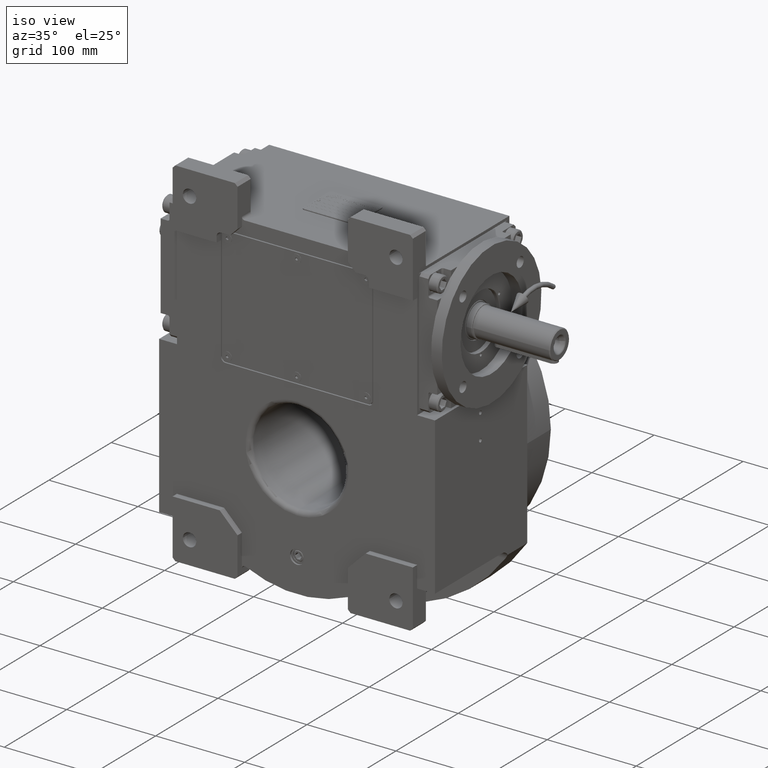
[diagram: clean part render]
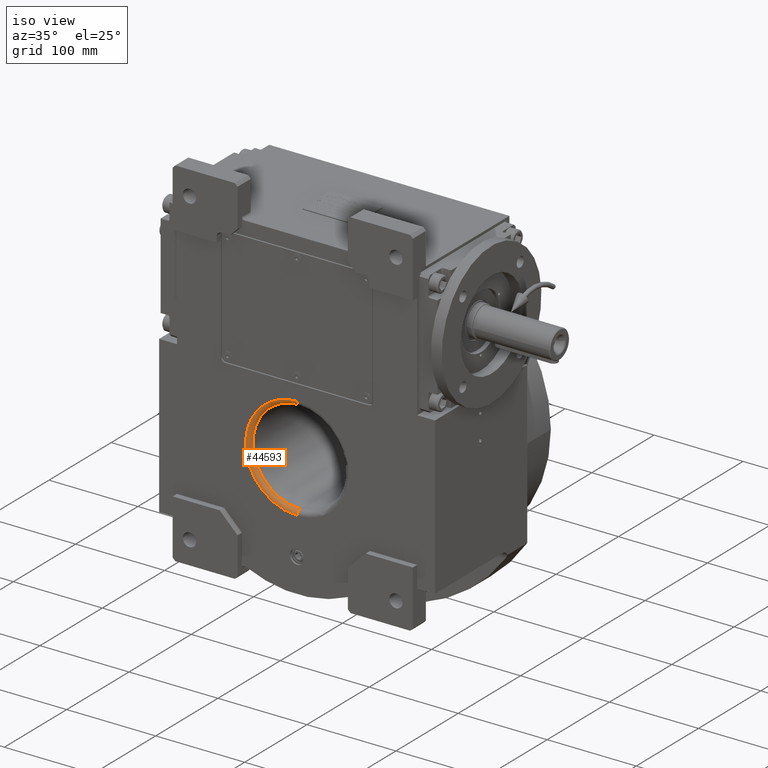
[diagram: same view with one face highlighted and labeled with its STEP entity id]
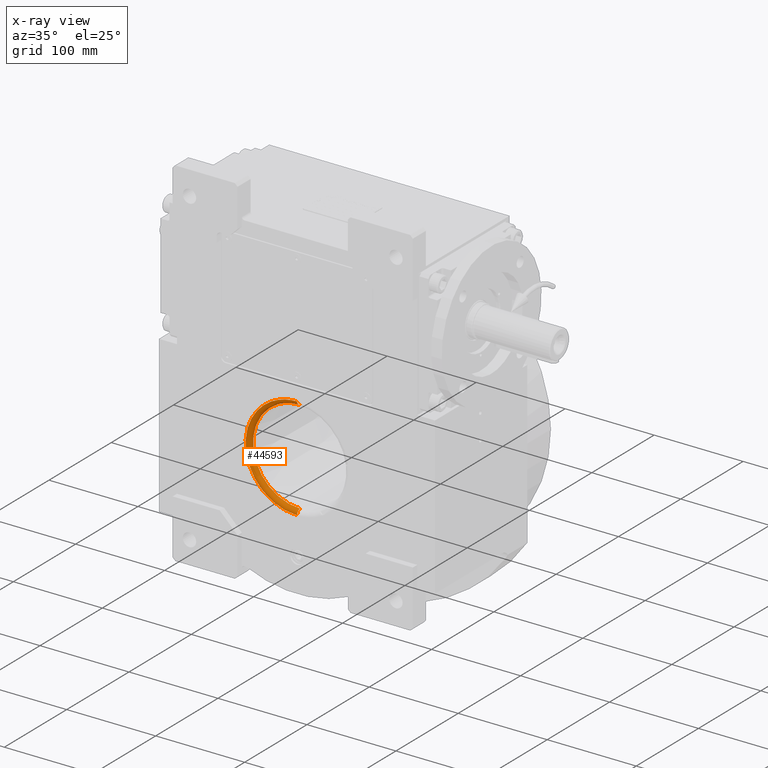
[diagram: x-ray of the same camera — body ghosted, the highlighted face saturated]
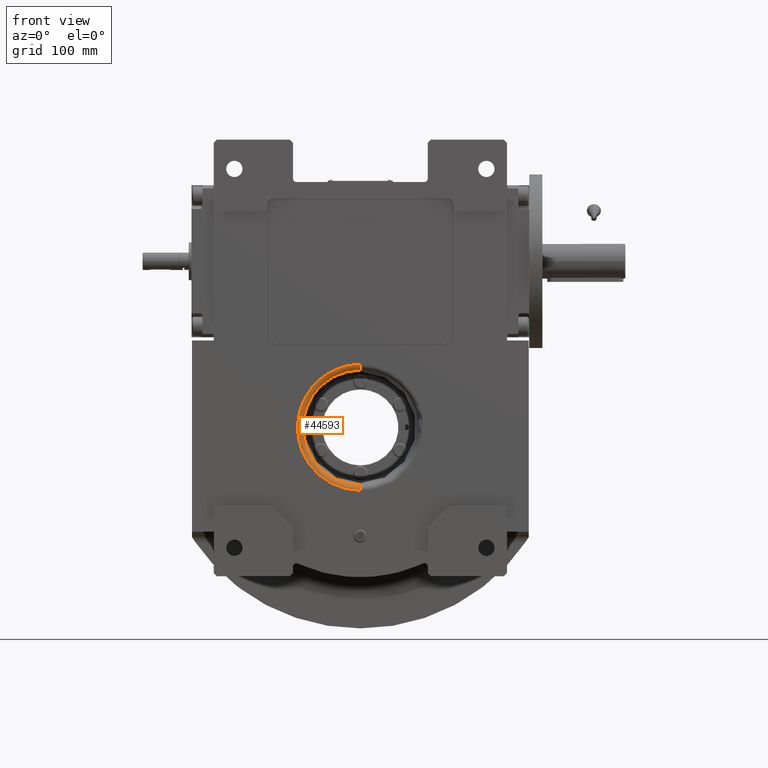
[diagram: same view with one face highlighted and labeled with its STEP entity id]
A machine part, iso view. The second image highlights one B-rep face of the part: STEP entity #44593.
The next image is the same camera in x-ray: the body ghosted, the highlighted face saturated — about 0% of this face is hidden behind the body in this view.
A second angle (front view) of the same face is appended — the face is thin or edge-on in the first view.
In plain terms, the highlighted toroidal blend (fillet) surface has major radius 57.8885 mm and minor (blend) radius 5 mm.
Its self-contained STEP definition (entity closure, byte-faithful):
#422 = DIRECTION ( 'NONE',  ( 0.9882587347805640299, -2.055886669902873894E-08, -0.1527896368538074756 ) ) ;
#546 = CARTESIAN_POINT ( 'NONE',  ( 1.116299612869330063E-12, -73.00000000000000000, -57.88848986029439914 ) ) ;
#1757 = ORIENTED_EDGE ( 'NONE', *, *, #53385, .F. ) ;
#1984 = DIRECTION ( 'NONE',  ( 4.421425797491959834E-18, -1.000000000000000000, 1.064850763030846077E-19 ) ) ;
#4085 = CIRCLE ( 'NONE', #68536, 5.000000000000004441 ) ;
#7469 = DIRECTION ( 'NONE',  ( 2.310691404686464099E-08, 0.9999999999999997780, 1.490116125507999888E-08 ) ) ;
#14992 = AXIS2_PLACEMENT_3D ( 'NONE', #45190, #1984, #22902 ) ;
#16814 = AXIS2_PLACEMENT_3D ( 'NONE', #39735, #7469, #422 ) ;
#16993 = AXIS2_PLACEMENT_3D ( 'NONE', #27564, #33197, #49478 ) ;
#20679 = CARTESIAN_POINT ( 'NONE',  ( 1.116299612869330063E-12, -73.00000000000000000, -57.88848986029439914 ) ) ;
#22902 = DIRECTION ( 'NONE',  ( 0.02407689559208889621, -2.392540785118227540E-35, -0.9997101095310817476 ) ) ;
#27564 = CARTESIAN_POINT ( 'NONE',  ( 1.200603528221986005E-10, -68.00000000000000000, -57.88848986029619681 ) ) ;
#29286 = CIRCLE ( 'NONE', #16814, 52.88976140256119152 ) ;
#30008 = VERTEX_POINT ( 'NONE', #60327 ) ;
#30043 =( BOUNDED_CURVE ( )  B_SPLINE_CURVE ( 3, ( #546, #64631, #43054, #42011 ),
 .UNSPECIFIED., .F., .F. ) 
 B_SPLINE_CURVE_WITH_KNOTS ( ( 4, 4 ),
 ( 1.417576403733056045, 4.559165537837738036 ),
 .UNSPECIFIED. ) 
 CURVE ( )  GEOMETRIC_REPRESENTATION_ITEM ( )  RATIONAL_B_SPLINE_CURVE ( ( 1.000000000000000000, 0.3333345064950371528, 0.3333345064950371528, 1.000000000000000000 ) ) 
 REPRESENTATION_ITEM ( '' )  );
#32249 = ORIENTED_EDGE ( 'NONE', *, *, #67367, .T. ) ;
#33197 = DIRECTION ( 'NONE',  ( -1.000000000000000000, 2.334229079672190055E-11, 3.440570546148015035E-12 ) ) ;
#35695 = ORIENTED_EDGE ( 'NONE', *, *, #50158, .F. ) ;
#39735 = CARTESIAN_POINT ( 'NONE',  ( 5.180066373969149615E-08, -68.11275406274060629, 4.736386318413870025E-15 ) ) ;
#42011 = CARTESIAN_POINT ( 'NONE',  ( -1.115322681495329805E-12, -73.00000000000000000, 57.88848986029439914 ) ) ;
#43054 = CARTESIAN_POINT ( 'NONE',  ( -115.7767661625582463, -73.00000000000000000, 57.88834748044401834 ) ) ;
#43882 = DIRECTION ( 'NONE',  ( 2.334134032802207626E-11, -1.000000000000000000, -1.099120794378903965E-12 ) ) ;
#44593 = ADVANCED_FACE ( 'NONE', ( #61106 ), #69228, .T. ) ;
#45171 = ORIENTED_EDGE ( 'NONE', *, *, #52738, .T. ) ;
#45190 = CARTESIAN_POINT ( 'NONE',  ( 0.000000000000000000, -68.00000000000000000, 2.626597011442929886E-14 ) ) ;
#46059 = CARTESIAN_POINT ( 'NONE',  ( -3.366447261396295104E-11, -68.11275327462200835, 52.88976135205919604 ) ) ;
#47506 = CIRCLE ( 'NONE', #16993, 5.000000000000004441 ) ;
#48111 = DIRECTION ( 'NONE',  ( 1.000000000000000000, 2.334134032802589874E-11, -3.443100538103175062E-12 ) ) ;
#49478 = DIRECTION ( 'NONE',  ( -2.334229079671812977E-11, -1.000000000000000000, 1.093569679255778183E-12 ) ) ;
#50158 = EDGE_CURVE ( 'NONE', #53586, #52953, #4085, .T. ) ;
#52738 = EDGE_CURVE ( 'NONE', #30008, #52953, #29286, .T. ) ;
#52953 = VERTEX_POINT ( 'NONE', #46059 ) ;
#53385 = EDGE_CURVE ( 'NONE', #68046, #53586, #30043, .T. ) ;
#53586 = VERTEX_POINT ( 'NONE', #66738 ) ;
#54471 = CARTESIAN_POINT ( 'NONE',  ( -1.200526696845962053E-10, -68.00000000000000000, 57.88848986029630339 ) ) ;
#60327 = CARTESIAN_POINT ( 'NONE',  ( 3.366158563859759886E-11, -68.11275327462200835, -52.88976135205919604 ) ) ;
#61106 = FACE_OUTER_BOUND ( 'NONE', #68492, .T. ) ;
#64631 = CARTESIAN_POINT ( 'NONE',  ( -115.7767661625559867, -73.00000000000000000, -57.88822476622628699 ) ) ;
#66738 = CARTESIAN_POINT ( 'NONE',  ( -1.115322681495329805E-12, -73.00000000000000000, 57.88848986029439914 ) ) ;
#67367 = EDGE_CURVE ( 'NONE', #68046, #30008, #47506, .T. ) ;
#68046 = VERTEX_POINT ( 'NONE', #20679 ) ;
#68492 = EDGE_LOOP ( 'NONE', ( #32249, #45171, #35695, #1757 ) ) ;
#68536 = AXIS2_PLACEMENT_3D ( 'NONE', #54471, #48111, #43882 ) ;
#69228 = TOROIDAL_SURFACE ( 'NONE', #14992, 57.88848986029619681, 5.000000000000000000 ) ;